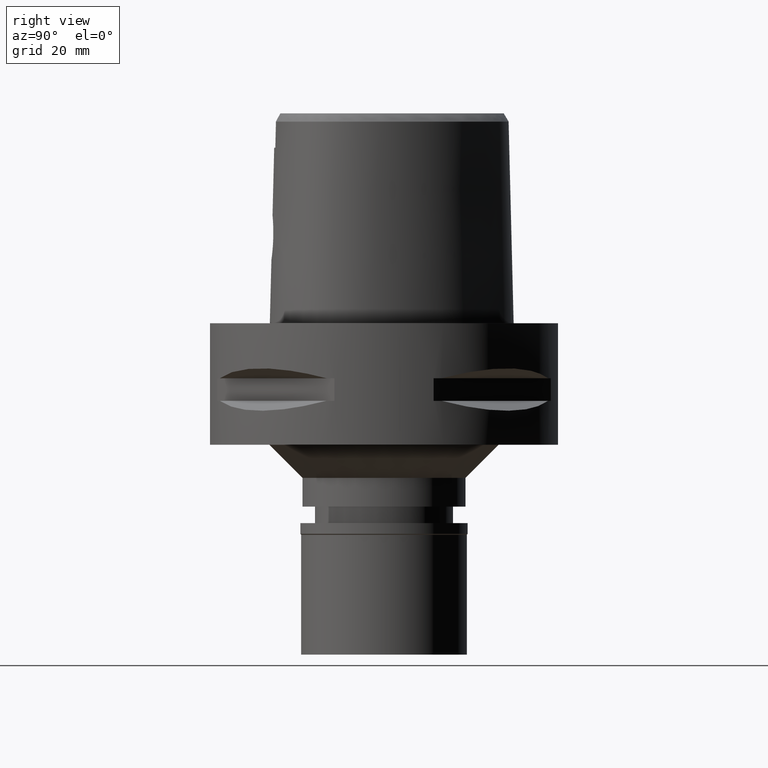
[diagram: clean part render]
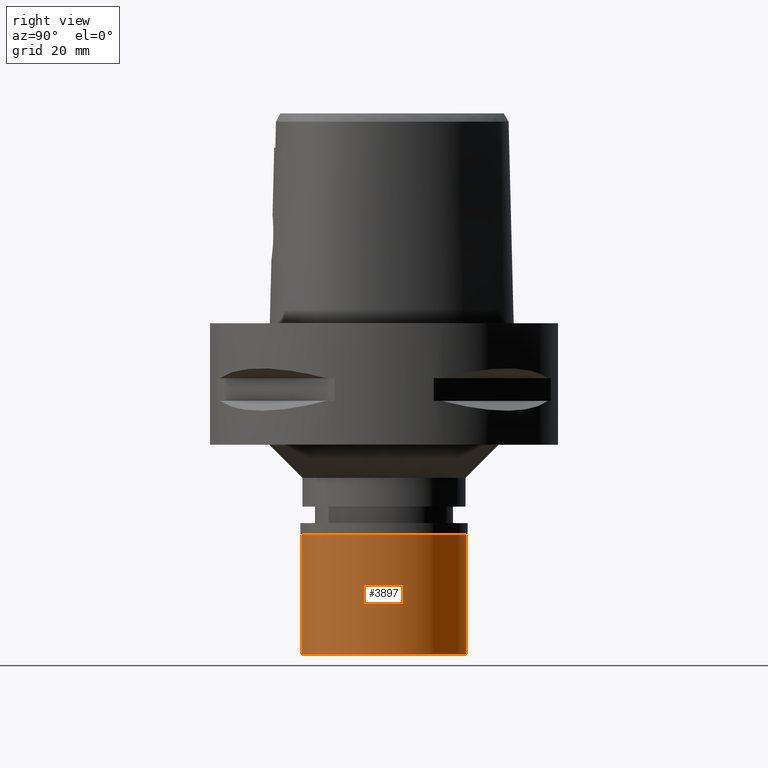
[diagram: same view with one face highlighted and labeled with its STEP entity id]
A machine part, right view. The second image highlights one B-rep face of the part: STEP entity #3897.
In plain terms, the highlighted cylindrical surface (partial cylindrical patch) has radius 15 mm, axis along (0, 0, -1).
Its self-contained STEP definition (entity closure, byte-faithful):
#319 = CIRCLE ( 'NONE', #4307, 15.00000000000000000 ) ;
#430 = VERTEX_POINT ( 'NONE', #3979 ) ;
#490 = ORIENTED_EDGE ( 'NONE', *, *, #3823, .F. ) ;
#643 = CARTESIAN_POINT ( 'NONE',  ( 0.0000000000000000000, 15.00000000000000000, -2.100000000000000089 ) ) ;
#705 = AXIS2_PLACEMENT_3D ( 'NONE', #4320, #3547, #2814 ) ;
#938 = EDGE_CURVE ( 'NONE', #4189, #4502, #3033, .T. ) ;
#1243 = DIRECTION ( 'NONE',  ( 0.0000000000000000000, 0.0000000000000000000, 1.000000000000000000 ) ) ;
#1447 = FACE_OUTER_BOUND ( 'NONE', #3942, .T. ) ;
#1696 = CYLINDRICAL_SURFACE ( 'NONE', #705, 15.00000000000000000 ) ;
#1896 = DIRECTION ( 'NONE',  ( 0.0000000000000000000, 0.0000000000000000000, -1.000000000000000000 ) ) ;
#2544 = ORIENTED_EDGE ( 'NONE', *, *, #938, .T. ) ;
#2593 = AXIS2_PLACEMENT_3D ( 'NONE', #4774, #1896, #3388 ) ;
#2638 = ORIENTED_EDGE ( 'NONE', *, *, #4763, .T. ) ;
#2667 = CARTESIAN_POINT ( 'NONE',  ( 0.0000000000000000000, -15.00000000000000000, -2.100000000000000089 ) ) ;
#2721 = EDGE_CURVE ( 'NONE', #2816, #4189, #4376, .T. ) ;
#2732 = DIRECTION ( 'NONE',  ( 0.0000000000000000000, -1.000000000000000000, 0.0000000000000000000 ) ) ;
#2746 = VECTOR ( 'NONE', #4153, 1000.000000000000000 ) ;
#2787 = CARTESIAN_POINT ( 'NONE',  ( 0.0000000000000000000, -15.00000000000000000, -2.100000000000000089 ) ) ;
#2814 = DIRECTION ( 'NONE',  ( 0.0000000000000000000, -1.000000000000000000, 0.0000000000000000000 ) ) ;
#2816 = VERTEX_POINT ( 'NONE', #3702 ) ;
#2913 = VECTOR ( 'NONE', #3634, 1000.000000000000000 ) ;
#3033 = LINE ( 'NONE', #2667, #2746 ) ;
#3193 = CARTESIAN_POINT ( 'NONE',  ( 0.0000000000000000000, 0.0000000000000000000, -23.80000000000000071 ) ) ;
#3388 = DIRECTION ( 'NONE',  ( 0.0000000000000000000, 1.000000000000000000, 0.0000000000000000000 ) ) ;
#3547 = DIRECTION ( 'NONE',  ( 0.0000000000000000000, 0.0000000000000000000, -1.000000000000000000 ) ) ;
#3634 = DIRECTION ( 'NONE',  ( 0.0000000000000000000, 0.0000000000000000000, -1.000000000000000000 ) ) ;
#3702 = CARTESIAN_POINT ( 'NONE',  ( 0.0000000000000000000, 15.00000000000000000, -2.100000000000000089 ) ) ;
#3823 = EDGE_CURVE ( 'NONE', #2816, #430, #4008, .T. ) ;
#3897 = ADVANCED_FACE ( 'NONE', ( #1447 ), #1696, .T. ) ;
#3942 = EDGE_LOOP ( 'NONE', ( #4738, #2544, #2638, #490 ) ) ;
#3979 = CARTESIAN_POINT ( 'NONE',  ( 0.0000000000000000000, 15.00000000000000000, -23.80000000000000071 ) ) ;
#4008 = LINE ( 'NONE', #643, #2913 ) ;
#4153 = DIRECTION ( 'NONE',  ( 0.0000000000000000000, 0.0000000000000000000, -1.000000000000000000 ) ) ;
#4189 = VERTEX_POINT ( 'NONE', #2787 ) ;
#4307 = AXIS2_PLACEMENT_3D ( 'NONE', #3193, #1243, #2732 ) ;
#4320 = CARTESIAN_POINT ( 'NONE',  ( 0.0000000000000000000, 0.0000000000000000000, 0.0000000000000000000 ) ) ;
#4376 = CIRCLE ( 'NONE', #2593, 15.00000000000000000 ) ;
#4502 = VERTEX_POINT ( 'NONE', #4523 ) ;
#4523 = CARTESIAN_POINT ( 'NONE',  ( 0.0000000000000000000, -15.00000000000000000, -23.80000000000000071 ) ) ;
#4738 = ORIENTED_EDGE ( 'NONE', *, *, #2721, .T. ) ;
#4763 = EDGE_CURVE ( 'NONE', #4502, #430, #319, .T. ) ;
#4774 = CARTESIAN_POINT ( 'NONE',  ( 0.0000000000000000000, 0.0000000000000000000, -2.100000000000000089 ) ) ;